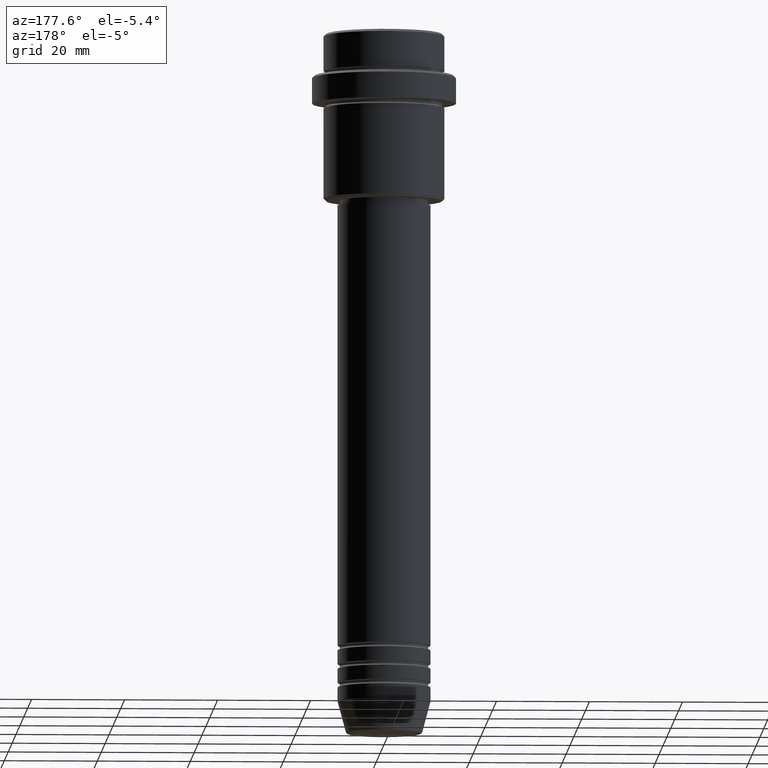
[diagram: clean part render]
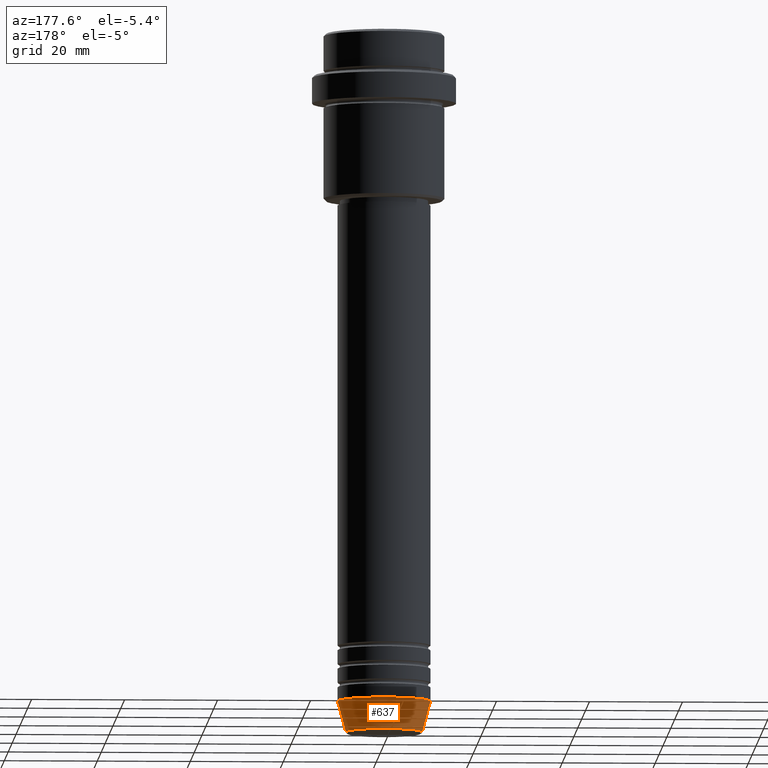
[diagram: same view with one face highlighted and labeled with its STEP entity id]
A machine part, auxiliary view. The second image highlights one B-rep face of the part: STEP entity #637.
In plain terms, the highlighted conical surface has half-angle 15 deg.
Its self-contained STEP definition (entity closure, byte-faithful):
#22 = ORIENTED_EDGE ( 'NONE', *, *, #1263, .T. ) ;
#47 = CARTESIAN_POINT ( 'NONE',  ( -10.00000000000000000, 1.224646799147353256E-15, -144.0000000000000000 ) ) ;
#65 = DIRECTION ( 'NONE',  ( -0.000000000000000000, -0.000000000000000000, 1.000000000000000000 ) ) ;
#90 = VECTOR ( 'NONE', #158, 1000.000000000000000 ) ;
#111 = AXIS2_PLACEMENT_3D ( 'NONE', #1311, #327, #127 ) ;
#127 = DIRECTION ( 'NONE',  ( 1.000000000000000000, 0.000000000000000000, 0.000000000000000000 ) ) ;
#139 = EDGE_CURVE ( 'NONE', #860, #613, #1341, .T. ) ;
#155 = CARTESIAN_POINT ( 'NONE',  ( -8.223655072137191269, 1.115877042642912054E-15, -150.6294095225512137 ) ) ;
#158 = DIRECTION ( 'NONE',  ( -0.2588190451025222938, 3.169619151431783430E-17, 0.9659258262890678681 ) ) ;
#166 = CARTESIAN_POINT ( 'NONE',  ( 10.00000000000000000, 0.000000000000000000, -144.0000000000000000 ) ) ;
#227 = CIRCLE ( 'NONE', #111, 8.223655072137191269 ) ;
#303 = CARTESIAN_POINT ( 'NONE',  ( 10.00000000000000000, 0.000000000000000000, -144.0000000000000000 ) ) ;
#327 = DIRECTION ( 'NONE',  ( -0.000000000000000000, -0.000000000000000000, 1.000000000000000000 ) ) ;
#354 = AXIS2_PLACEMENT_3D ( 'NONE', #825, #65, #947 ) ;
#368 = EDGE_CURVE ( 'NONE', #686, #771, #829, .T. ) ;
#406 = FACE_OUTER_BOUND ( 'NONE', #667, .T. ) ;
#489 = CARTESIAN_POINT ( 'NONE',  ( -10.00000000000000000, 1.224646799147353256E-15, -144.0000000000000000 ) ) ;
#549 = EDGE_CURVE ( 'NONE', #613, #771, #871, .T. ) ;
#578 = DIRECTION ( 'NONE',  ( 0.2588190451025222938, 0.000000000000000000, 0.9659258262890678681 ) ) ;
#608 = DIRECTION ( 'NONE',  ( 1.000000000000000000, 0.000000000000000000, 0.000000000000000000 ) ) ;
#613 = VERTEX_POINT ( 'NONE', #303 ) ;
#637 = ADVANCED_FACE ( 'NONE', ( #406 ), #1364, .T. ) ;
#667 = EDGE_LOOP ( 'NONE', ( #22, #1403, #1095, #992 ) ) ;
#686 = VERTEX_POINT ( 'NONE', #155 ) ;
#743 = CARTESIAN_POINT ( 'NONE',  ( 0.000000000000000000, 0.000000000000000000, -144.0000000000000000 ) ) ;
#771 = VERTEX_POINT ( 'NONE', #47 ) ;
#825 = CARTESIAN_POINT ( 'NONE',  ( 0.000000000000000000, 0.000000000000000000, -144.0000000000000000 ) ) ;
#829 = LINE ( 'NONE', #489, #90 ) ;
#860 = VERTEX_POINT ( 'NONE', #879 ) ;
#871 = CIRCLE ( 'NONE', #354, 10.00000000000000000 ) ;
#879 = CARTESIAN_POINT ( 'NONE',  ( 8.223655072137191269, 0.000000000000000000, -150.6294095225512137 ) ) ;
#947 = DIRECTION ( 'NONE',  ( 1.000000000000000000, 0.000000000000000000, 0.000000000000000000 ) ) ;
#992 = ORIENTED_EDGE ( 'NONE', *, *, #139, .F. ) ;
#1095 = ORIENTED_EDGE ( 'NONE', *, *, #549, .F. ) ;
#1247 = VECTOR ( 'NONE', #578, 1000.000000000000000 ) ;
#1263 = EDGE_CURVE ( 'NONE', #860, #686, #227, .T. ) ;
#1270 = DIRECTION ( 'NONE',  ( -0.000000000000000000, -0.000000000000000000, 1.000000000000000000 ) ) ;
#1273 = AXIS2_PLACEMENT_3D ( 'NONE', #743, #1270, #608 ) ;
#1311 = CARTESIAN_POINT ( 'NONE',  ( 0.000000000000000000, 0.000000000000000000, -150.6294095225512137 ) ) ;
#1341 = LINE ( 'NONE', #166, #1247 ) ;
#1364 = CONICAL_SURFACE ( 'NONE', #1273, 10.00000000000000000, 0.2617993877991510177 ) ;
#1403 = ORIENTED_EDGE ( 'NONE', *, *, #368, .T. ) ;